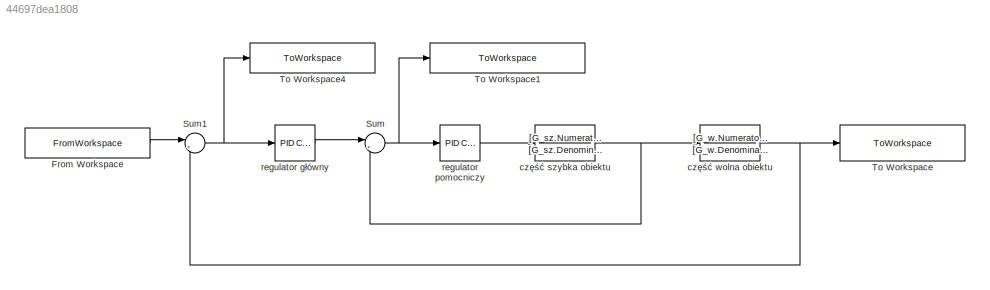
MODEL slx_44697dea1808
KIND model
CONFIG AbsTol = auto
CONFIG EnableMultiTasking = off
CONFIG FixedStep = t_krok
CONFIG MaxStep = auto
CONFIG MinStep = auto
CONFIG RelTol = 1e-3
CONFIG SampleTimeConstraint = Unconstrained
CONFIG Solver = FixedStepAuto
CONFIG SolverName = FixedStepAuto
CONFIG StartTime = 0.0
CONFIG StopTime = T_symulacji
BLOCK [TransferFcn]  część szybka obiektu
  Denominator = [G_sz.Denominator{:}]
  Numerator = [G_sz.Numerator{:}]
BLOCK [TransferFcn]  część wolna obiektu
  Denominator = [G_w.Denominator{:}]
  Numerator = [G_w.Numerator{:}]
BLOCK [FromWorkspace] From Workspace
  SampleTime = 0
  VariableName = s_zadany_kaskada
  ZeroCross = on
BLOCK [Sum] Sum
  IconShape = round
  InputSameDT = off
  Inputs = |+-
  OutDataTypeStr = Inherit: Inherit via internal rule
  Ports = [2, 1]
  SaturateOnIntegerOverflow = off
BLOCK [Sum] Sum1
  IconShape = round
  InputSameDT = off
  Inputs = |+-
  OutDataTypeStr = Inherit: Inherit via internal rule
  Ports = [2, 1]
  SaturateOnIntegerOverflow = off
BLOCK [ToWorkspace] To Workspace
  FixptAsFi = on
  MaxDataPoints = inf
  Ports = [1]
  SampleTime = -1
  Save2DSignal = 3-D array (concatenate along third dimension)
  VariableName = odp_reg_kaskadowy
BLOCK [ToWorkspace] To Workspace1
  FixptAsFi = on
  MaxDataPoints = inf
  Ports = [1]
  SampleTime = -1
  Save2DSignal = 3-D array (concatenate along third dimension)
  VariableName = uchyb_reg_pomocniczy
BLOCK [ToWorkspace] To Workspace4
  FixptAsFi = on
  MaxDataPoints = inf
  Ports = [1]
  SampleTime = -1
  Save2DSignal = 3-D array (concatenate along third dimension)
  VariableName = uchyb_reg_glowny
BLOCK [Reference] regulator główny  REF=simulink/Continuous/PID Controller
  Ports = [1, 1]
  SourceBlock = simulink/Continuous/PID Controller
  SourceProductBaseCode = SL
  SourceProductName = Simulink
  SourceType = PID 1dof
BLOCK [Reference] regulator pomocniczy  REF=simulink/Continuous/PID Controller
  Ports = [1, 1]
  SourceBlock = simulink/Continuous/PID Controller
  SourceProductBaseCode = SL
  SourceProductName = Simulink
  SourceType = PID 1dof
NET  część szybka obiektu:1 ->  część wolna obiektu:1, Sum:2
NET  część wolna obiektu:1 -> Sum1:2, To Workspace:1
LINE From Workspace:1 -> Sum1:1
NET Sum1:1 -> To Workspace4:1, regulator główny:1
NET Sum:1 -> To Workspace1:1, regulator pomocniczy:1
LINE regulator główny:1 -> Sum:1
LINE regulator pomocniczy:1 ->  część szybka obiektu:1
note: NET lines group one-source signal fan-out (src -> all destinations, sorted); 1:1 wires keep LINE
